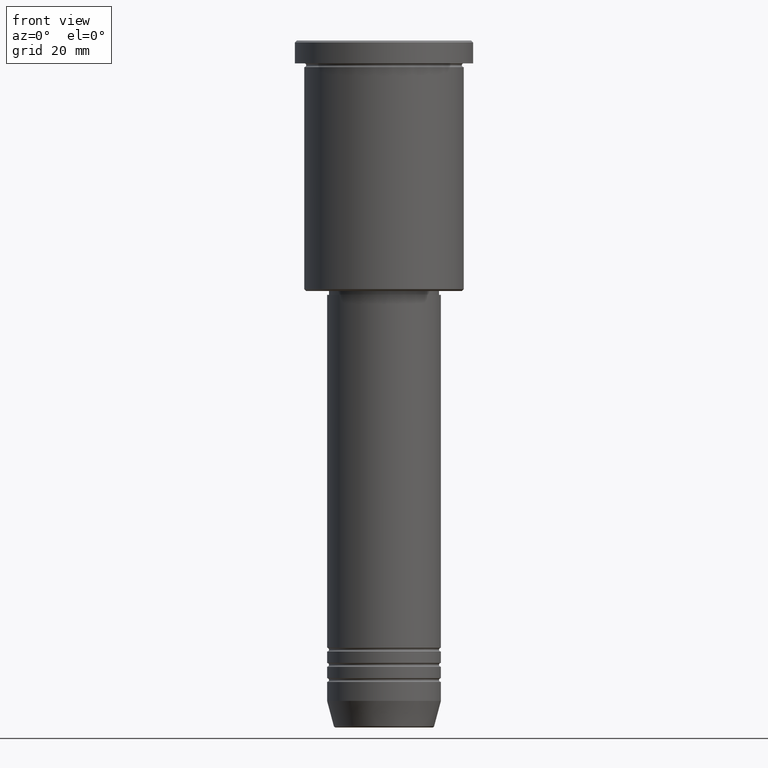
[diagram: clean part render]
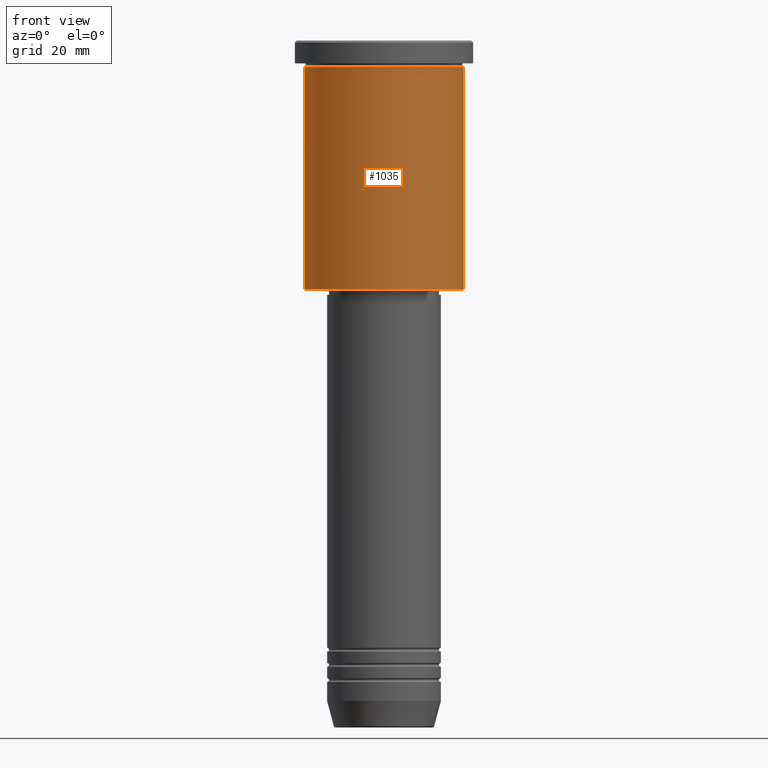
[diagram: same view with one face highlighted and labeled with its STEP entity id]
A machine part, front view. The second image highlights one B-rep face of the part: STEP entity #1035.
In plain terms, the highlighted cylindrical surface (partial cylindrical patch) has radius 21 mm, axis along (-0, -0, 1).
Its self-contained STEP definition (entity closure, byte-faithful):
#49 = AXIS2_PLACEMENT_3D ( 'NONE', #493, #380, #1129 ) ;
#108 = ORIENTED_EDGE ( 'NONE', *, *, #547, .T. ) ;
#115 = VERTEX_POINT ( 'NONE', #1132 ) ;
#134 = CARTESIAN_POINT ( 'NONE',  ( 0.000000000000000000, 0.000000000000000000, -65.49999999999997158 ) ) ;
#145 = EDGE_CURVE ( 'NONE', #115, #447, #575, .T. ) ;
#191 = AXIS2_PLACEMENT_3D ( 'NONE', #1097, #630, #518 ) ;
#277 = CARTESIAN_POINT ( 'NONE',  ( -21.00000000000000000, 2.571758278209441661E-15, 0.000000000000000000 ) ) ;
#327 = CARTESIAN_POINT ( 'NONE',  ( 21.00000000000000000, 0.000000000000000000, 0.000000000000000000 ) ) ;
#329 = EDGE_CURVE ( 'NONE', #447, #1046, #384, .T. ) ;
#380 = DIRECTION ( 'NONE',  ( -0.000000000000000000, -0.000000000000000000, 1.000000000000000000 ) ) ;
#384 = CIRCLE ( 'NONE', #191, 21.00000000000000000 ) ;
#419 = LINE ( 'NONE', #327, #455 ) ;
#447 = VERTEX_POINT ( 'NONE', #503 ) ;
#450 = EDGE_CURVE ( 'NONE', #605, #1046, #419, .T. ) ;
#455 = VECTOR ( 'NONE', #802, 1000.000000000000000 ) ;
#493 = CARTESIAN_POINT ( 'NONE',  ( 0.000000000000000000, 0.000000000000000000, 0.000000000000000000 ) ) ;
#503 = CARTESIAN_POINT ( 'NONE',  ( -21.00000000000000000, 2.571758278209441661E-15, -6.999999999999993783 ) ) ;
#518 = DIRECTION ( 'NONE',  ( 1.000000000000000000, 0.000000000000000000, 0.000000000000000000 ) ) ;
#547 = EDGE_CURVE ( 'NONE', #115, #605, #763, .T. ) ;
#575 = LINE ( 'NONE', #277, #869 ) ;
#584 = ORIENTED_EDGE ( 'NONE', *, *, #329, .F. ) ;
#605 = VERTEX_POINT ( 'NONE', #980 ) ;
#630 = DIRECTION ( 'NONE',  ( -0.000000000000000000, -0.000000000000000000, 1.000000000000000000 ) ) ;
#652 = DIRECTION ( 'NONE',  ( -0.000000000000000000, -0.000000000000000000, 1.000000000000000000 ) ) ;
#693 = DIRECTION ( 'NONE',  ( -0.000000000000000000, -0.000000000000000000, 1.000000000000000000 ) ) ;
#763 = CIRCLE ( 'NONE', #910, 21.00000000000000000 ) ;
#802 = DIRECTION ( 'NONE',  ( -0.000000000000000000, -0.000000000000000000, 1.000000000000000000 ) ) ;
#827 = EDGE_LOOP ( 'NONE', ( #1179, #108, #854, #584 ) ) ;
#854 = ORIENTED_EDGE ( 'NONE', *, *, #450, .T. ) ;
#859 = CYLINDRICAL_SURFACE ( 'NONE', #49, 21.00000000000000000 ) ;
#869 = VECTOR ( 'NONE', #652, 1000.000000000000000 ) ;
#876 = CARTESIAN_POINT ( 'NONE',  ( 21.00000000000000000, 0.000000000000000000, -6.999999999999993783 ) ) ;
#910 = AXIS2_PLACEMENT_3D ( 'NONE', #134, #693, #1139 ) ;
#963 = FACE_OUTER_BOUND ( 'NONE', #827, .T. ) ;
#980 = CARTESIAN_POINT ( 'NONE',  ( 21.00000000000000000, 0.000000000000000000, -65.49999999999997158 ) ) ;
#1035 = ADVANCED_FACE ( 'NONE', ( #963 ), #859, .T. ) ;
#1046 = VERTEX_POINT ( 'NONE', #876 ) ;
#1097 = CARTESIAN_POINT ( 'NONE',  ( 0.000000000000000000, 0.000000000000000000, -6.999999999999993783 ) ) ;
#1129 = DIRECTION ( 'NONE',  ( 1.000000000000000000, 0.000000000000000000, 0.000000000000000000 ) ) ;
#1132 = CARTESIAN_POINT ( 'NONE',  ( -21.00000000000000000, 2.571758278209441661E-15, -65.49999999999997158 ) ) ;
#1139 = DIRECTION ( 'NONE',  ( -1.000000000000000000, 0.000000000000000000, 0.000000000000000000 ) ) ;
#1179 = ORIENTED_EDGE ( 'NONE', *, *, #145, .F. ) ;